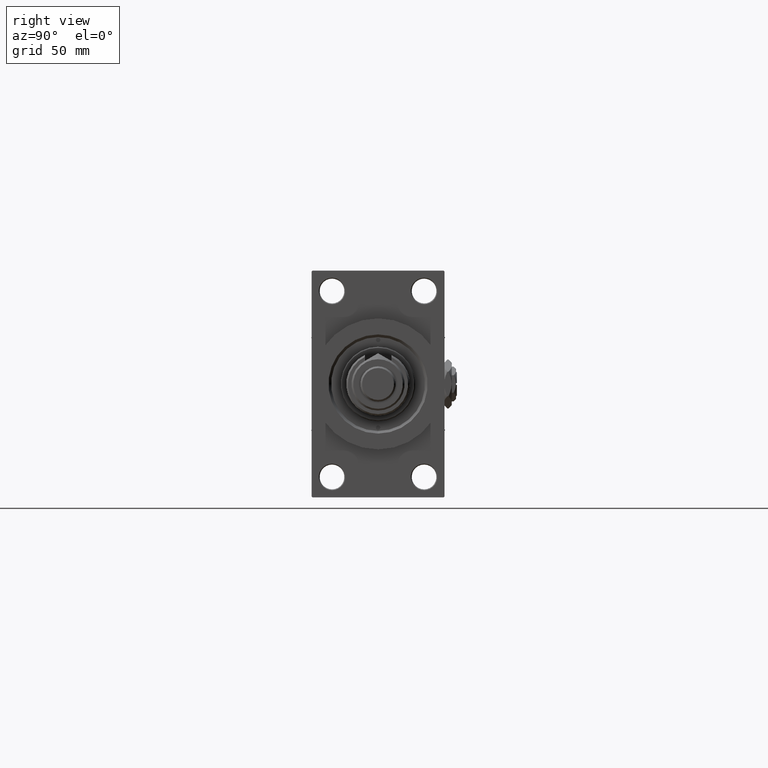
[diagram: clean part render]
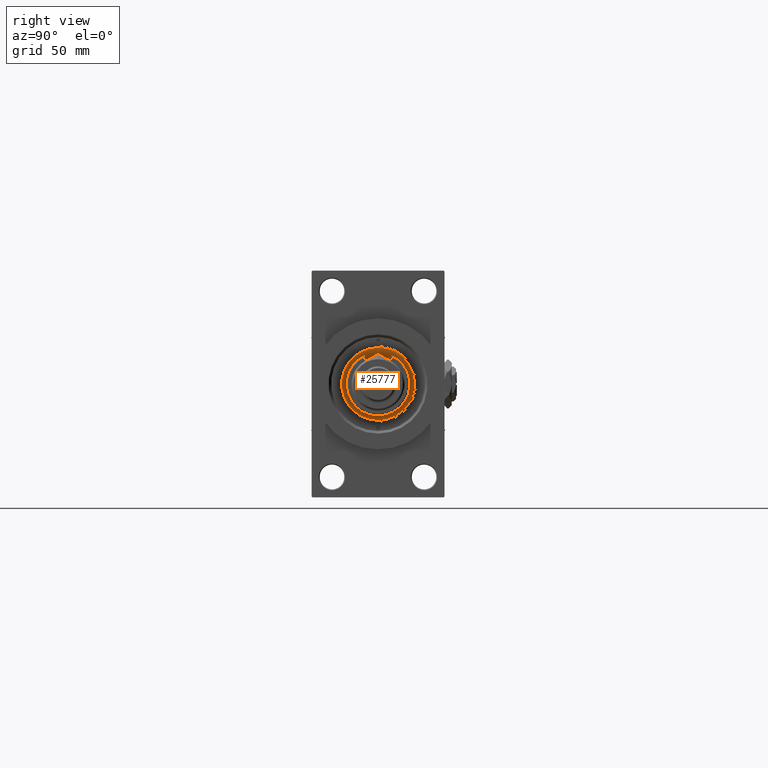
[diagram: same view with one face highlighted and labeled with its STEP entity id]
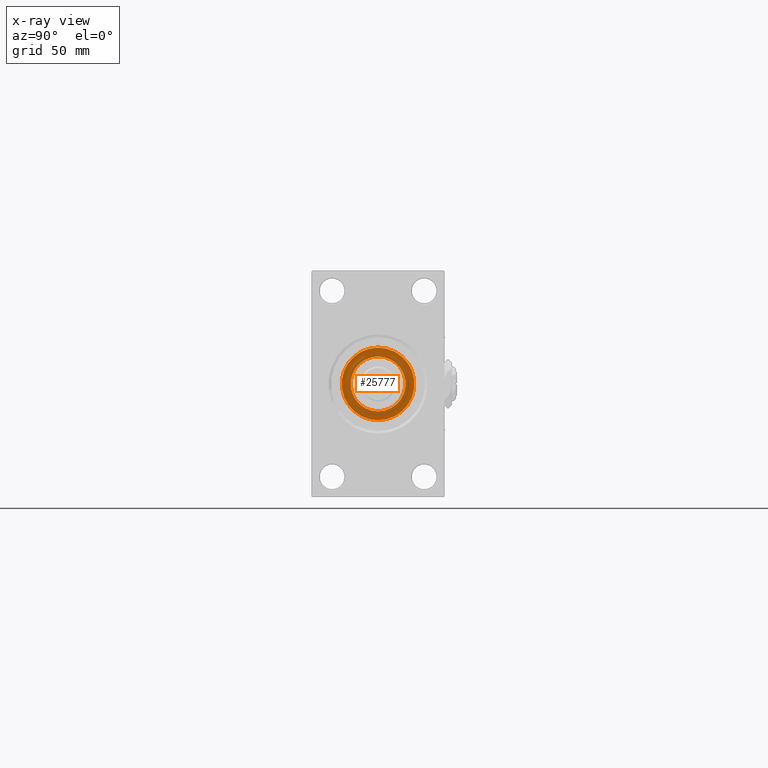
[diagram: x-ray of the same camera — body ghosted, the highlighted face saturated]
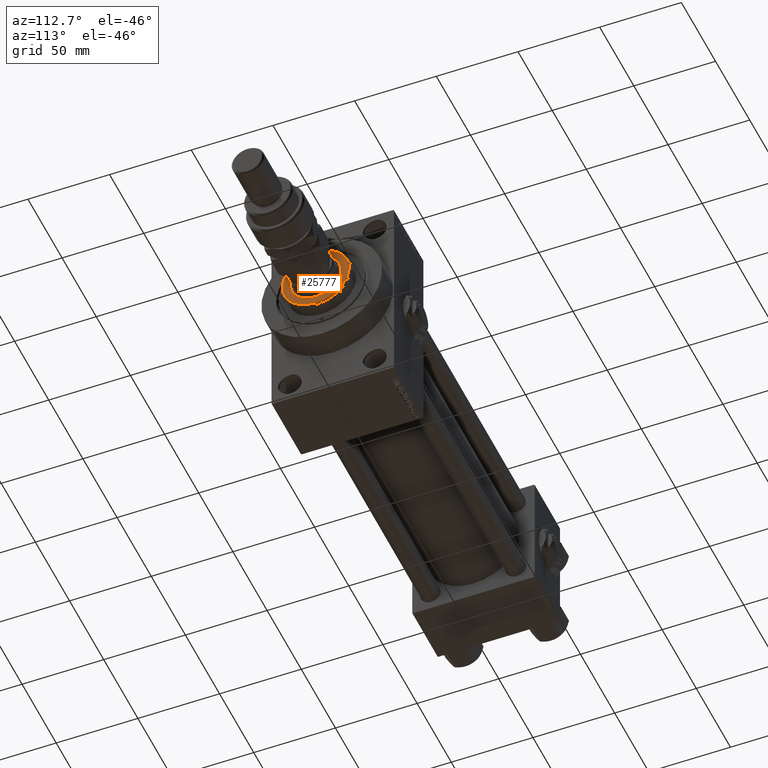
[diagram: same view with one face highlighted and labeled with its STEP entity id]
A machine part, right view. The second image highlights one B-rep face of the part: STEP entity #25777.
The next image is the same camera in x-ray: the body ghosted, the highlighted face saturated — about 40% of this face is hidden behind the body in this view.
A second angle (auxiliary view) of the same face is appended — the face is thin or edge-on in the first view.
In plain terms, the highlighted planar face has unit normal (1, -0, -0).
Its self-contained STEP definition (entity closure, byte-faithful):
#2450 = EDGE_CURVE ( 'NONE', #17639, #21075, #36506, .T. ) ;
#2926 = DIRECTION ( 'NONE',  ( 1.000000000000000000, 0.000000000000000000, 0.000000000000000000 ) ) ;
#3126 = FACE_OUTER_BOUND ( 'NONE', #38001, .T. ) ;
#4992 = VERTEX_POINT ( 'NONE', #42883 ) ;
#4998 = ORIENTED_EDGE ( 'NONE', *, *, #2450, .T. ) ;
#5175 = ORIENTED_EDGE ( 'NONE', *, *, #17337, .F. ) ;
#6056 = CIRCLE ( 'NONE', #24610, 15.50000000000000000 ) ;
#7189 = DIRECTION ( 'NONE',  ( 0.000000000000000000, 0.000000000000000000, 1.000000000000000000 ) ) ;
#8966 = ORIENTED_EDGE ( 'NONE', *, *, #25671, .T. ) ;
#10292 = EDGE_LOOP ( 'NONE', ( #28496, #5175 ) ) ;
#11304 = CARTESIAN_POINT ( 'NONE',  ( -20.50000000000000355, 0.000000000000000000, 52.25999999999999801 ) ) ;
#11717 = DIRECTION ( 'NONE',  ( 0.000000000000000000, 0.000000000000000000, 1.000000000000000000 ) ) ;
#15530 = CARTESIAN_POINT ( 'NONE',  ( 20.50000000000000355, 2.541142108230758269E-15, 52.25999999999999801 ) ) ;
#17337 = EDGE_CURVE ( 'NONE', #26266, #4992, #6056, .T. ) ;
#17639 = VERTEX_POINT ( 'NONE', #11304 ) ;
#17725 = CARTESIAN_POINT ( 'NONE',  ( 0.000000000000000000, 0.000000000000000000, 52.25999999999999801 ) ) ;
#20842 = AXIS2_PLACEMENT_3D ( 'NONE', #17725, #29625, #24677 ) ;
#21075 = VERTEX_POINT ( 'NONE', #15530 ) ;
#22474 = FACE_BOUND ( 'NONE', #10292, .T. ) ;
#22982 = DIRECTION ( 'NONE',  ( 1.000000000000000000, 0.000000000000000000, -0.000000000000000000 ) ) ;
#23144 = AXIS2_PLACEMENT_3D ( 'NONE', #23326, #7189, #28325 ) ;
#23326 = CARTESIAN_POINT ( 'NONE',  ( 0.000000000000000000, 0.000000000000000000, 52.25999999999999801 ) ) ;
#23834 = AXIS2_PLACEMENT_3D ( 'NONE', #47965, #11717, #44510 ) ;
#24610 = AXIS2_PLACEMENT_3D ( 'NONE', #34970, #51103, #2926 ) ;
#24677 = DIRECTION ( 'NONE',  ( 1.000000000000000000, 0.000000000000000000, 0.000000000000000000 ) ) ;
#25671 = EDGE_CURVE ( 'NONE', #21075, #17639, #28233, .T. ) ;
#25777 = ADVANCED_FACE ( 'NONE', ( #22474, #3126 ), #30678, .T. ) ;
#26266 = VERTEX_POINT ( 'NONE', #49876 ) ;
#28233 = CIRCLE ( 'NONE', #23144, 20.50000000000000355 ) ;
#28325 = DIRECTION ( 'NONE',  ( 1.000000000000000000, 0.000000000000000000, 0.000000000000000000 ) ) ;
#28496 = ORIENTED_EDGE ( 'NONE', *, *, #30379, .F. ) ;
#29625 = DIRECTION ( 'NONE',  ( 0.000000000000000000, 0.000000000000000000, 1.000000000000000000 ) ) ;
#29910 = AXIS2_PLACEMENT_3D ( 'NONE', #46813, #42595, #22982 ) ;
#30379 = EDGE_CURVE ( 'NONE', #4992, #26266, #47012, .T. ) ;
#30678 = PLANE ( 'NONE',  #29910 ) ;
#34970 = CARTESIAN_POINT ( 'NONE',  ( 0.000000000000000000, 0.000000000000000000, 52.25999999999999801 ) ) ;
#36506 = CIRCLE ( 'NONE', #23834, 20.50000000000000355 ) ;
#38001 = EDGE_LOOP ( 'NONE', ( #4998, #8966 ) ) ;
#42595 = DIRECTION ( 'NONE',  ( 0.000000000000000000, 0.000000000000000000, 1.000000000000000000 ) ) ;
#42883 = CARTESIAN_POINT ( 'NONE',  ( 15.50000000000000000, 0.000000000000000000, 52.25999999999999801 ) ) ;
#44510 = DIRECTION ( 'NONE',  ( 1.000000000000000000, 0.000000000000000000, 0.000000000000000000 ) ) ;
#46813 = CARTESIAN_POINT ( 'NONE',  ( 0.000000000000000000, 0.000000000000000000, 52.25999999999999801 ) ) ;
#47012 = CIRCLE ( 'NONE', #20842, 15.50000000000000000 ) ;
#47965 = CARTESIAN_POINT ( 'NONE',  ( 0.000000000000000000, 0.000000000000000000, 52.25999999999999801 ) ) ;
#49876 = CARTESIAN_POINT ( 'NONE',  ( -15.50000000000000000, 1.898202538678397557E-15, 52.25999999999999801 ) ) ;
#51103 = DIRECTION ( 'NONE',  ( 0.000000000000000000, 0.000000000000000000, 1.000000000000000000 ) ) ;